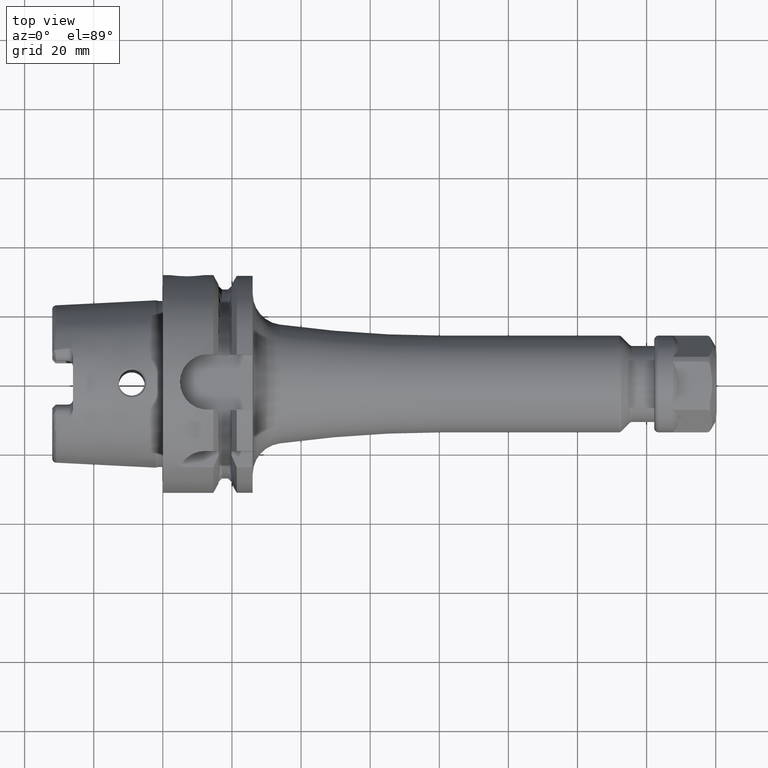
[diagram: clean part render]
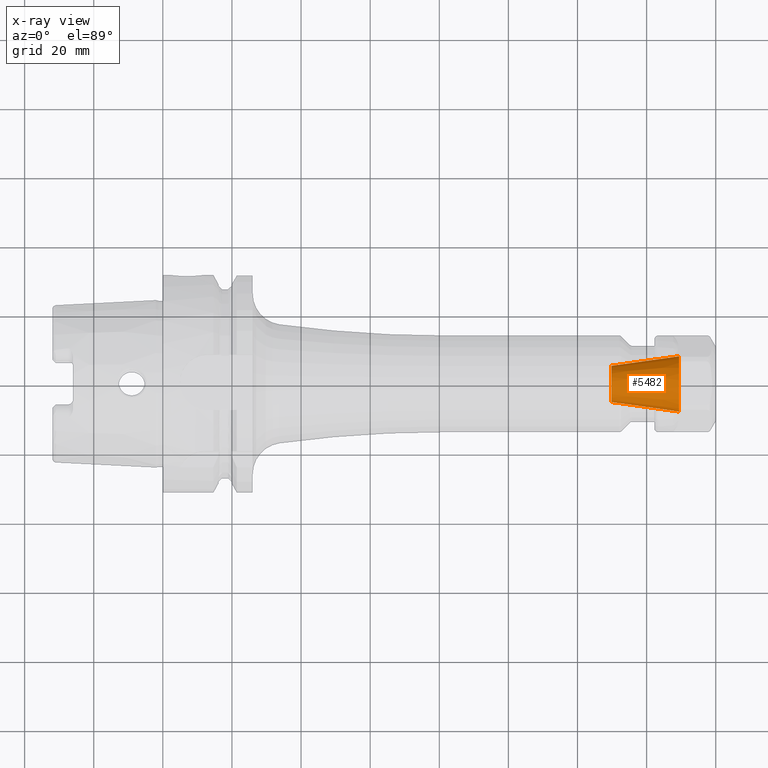
[diagram: x-ray — body ghosted, one internal face saturated and labeled with its STEP entity id]
A machine part, top view, then the same camera in x-ray: the body is ghosted and one INTERNAL B-rep face — a face not visible from any outside direction — is saturated and labeled: STEP entity #5482.
In plain terms, the highlighted conical surface has half-angle 8 deg.
Its self-contained STEP definition (entity closure, byte-faithful):
#2090=CARTESIAN_POINT('',(1.494E2,0.E0,0.E0));
#2091=DIRECTION('',(1.E0,0.E0,0.E0));
#2092=DIRECTION('',(0.E0,1.E0,0.E0));
#2093=AXIS2_PLACEMENT_3D('',#2090,#2091,#2092);
#2100=DIRECTION('',(-9.902680687416E-1,1.391731009601E-1,0.E0));
#2101=VECTOR('',#2100,1.975956546940E1);
#2102=CARTESIAN_POINT('',(1.494E2,-8.E0,0.E0));
#2103=LINE('',#2102,#2101);
#2104=DIRECTION('',(-9.902680687416E-1,-1.391731009601E-1,0.E0));
#2105=VECTOR('',#2104,1.975956546940E1);
#2106=CARTESIAN_POINT('',(1.494E2,8.E0,0.E0));
#2107=LINE('',#2106,#2105);
#2121=CARTESIAN_POINT('',(1.298327332634E2,0.E0,0.E0));
#2122=DIRECTION('',(1.E0,0.E0,0.E0));
#2123=DIRECTION('',(0.E0,1.E0,0.E0));
#2124=AXIS2_PLACEMENT_3D('',#2121,#2122,#2123);
#3152=CARTESIAN_POINT('',(1.298327332634E2,5.25E0,0.E0));
#3154=VERTEX_POINT('',#3152);
#3156=CARTESIAN_POINT('',(1.298327332634E2,-5.25E0,0.E0));
#3158=VERTEX_POINT('',#3156);
#3160=CARTESIAN_POINT('',(1.494E2,8.E0,0.E0));
#3161=CARTESIAN_POINT('',(1.494E2,-8.E0,0.E0));
#3162=VERTEX_POINT('',#3160);
#3163=VERTEX_POINT('',#3161);
#5468=CARTESIAN_POINT('',(1.396163666317E2,0.E0,0.E0));
#5469=DIRECTION('',(1.E0,0.E0,0.E0));
#5470=DIRECTION('',(0.E0,-1.E0,0.E0));
#5471=AXIS2_PLACEMENT_3D('',#5468,#5469,#5470);
#5472=CONICAL_SURFACE('',#5471,6.625E0,8.E0);
#5473=ORIENTED_EDGE('',*,*,#5461,.F.);
#5475=ORIENTED_EDGE('',*,*,#5474,.T.);
#5477=ORIENTED_EDGE('',*,*,#5476,.T.);
#5479=ORIENTED_EDGE('',*,*,#5478,.F.);
#5480=EDGE_LOOP('',(#5473,#5475,#5477,#5479));
#5481=FACE_OUTER_BOUND('',#5480,.F.);
#5482=ADVANCED_FACE('',(#5481),#5472,.F.);
#2094=CIRCLE('',#2093,8.E0);
#2125=CIRCLE('',#2124,5.25E0);
#5461=EDGE_CURVE('',#3162,#3163,#2094,.T.);
#5474=EDGE_CURVE('',#3162,#3154,#2107,.T.);
#5476=EDGE_CURVE('',#3154,#3158,#2125,.T.);
#5478=EDGE_CURVE('',#3163,#3158,#2103,.T.);